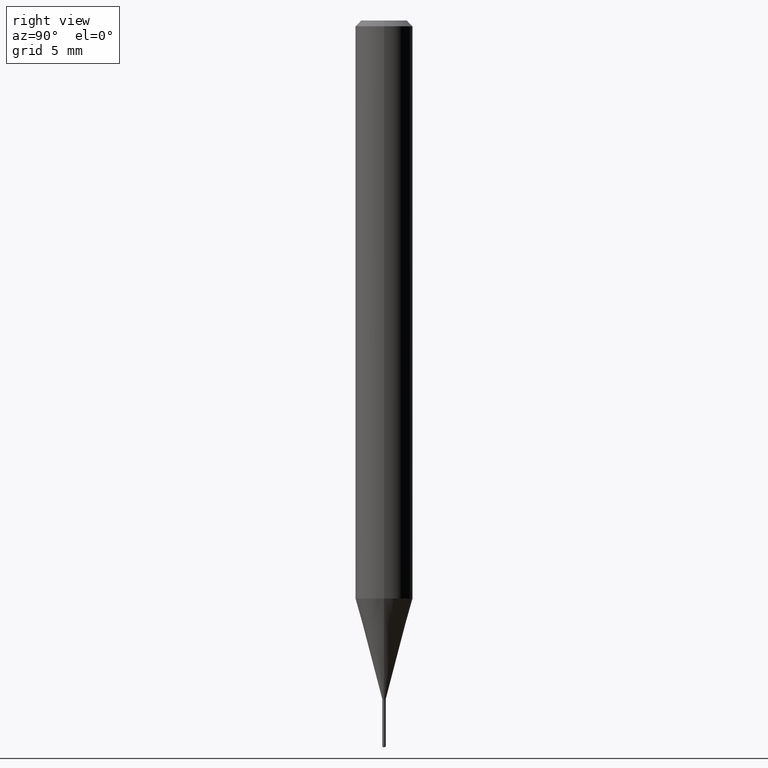
[diagram: clean part render]
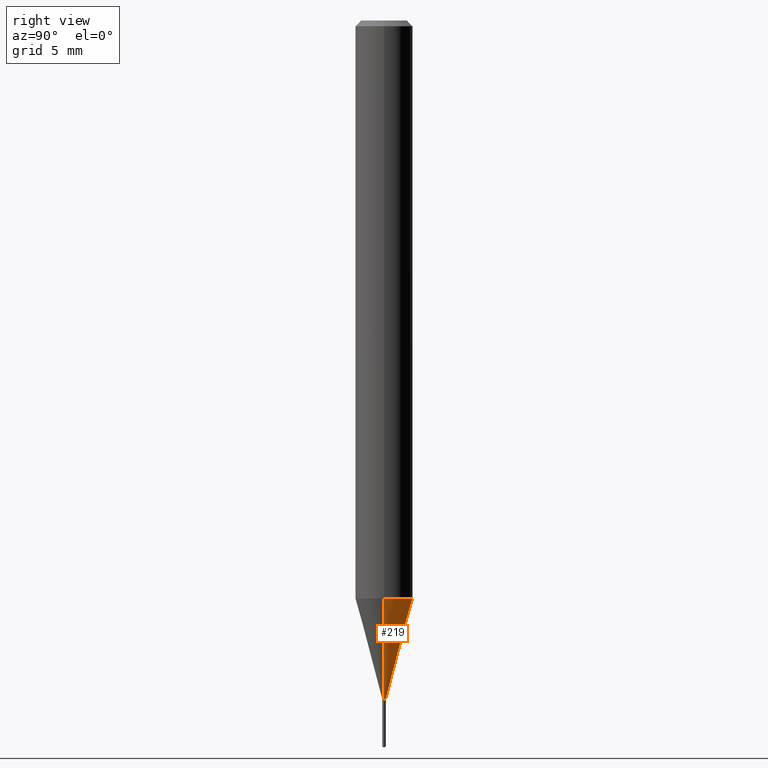
[diagram: same view with one face highlighted and labeled with its STEP entity id]
A machine part, right view. The second image highlights one B-rep face of the part: STEP entity #219.
In plain terms, the highlighted conical surface has half-angle 15 deg.
Its self-contained STEP definition (entity closure, byte-faithful):
#4 = ORIENTED_EDGE ( 'NONE', *, *, #289, .F. ) ;
#33 = EDGE_CURVE ( 'NONE', #400, #395, #375, .T. ) ;
#36 = CARTESIAN_POINT ( 'NONE',  ( 0.05905000000000014404, -4.565360374807322723E-15, -1.189471180179926924 ) ) ;
#56 = VERTEX_POINT ( 'NONE', #369 ) ;
#68 = CARTESIAN_POINT ( 'NONE',  ( -0.003549999999999997602, -4.852026015110506796E-15, -1.396599999999999842 ) ) ;
#69 = DIRECTION ( 'NONE',  ( 1.000000000000000000, -6.982962677686272233E-15, 0.000000000000000000 ) ) ;
#72 = CARTESIAN_POINT ( 'NONE',  ( -0.05905000000000014404, -3.733440943223607521E-15, -1.189471180179926924 ) ) ;
#78 = EDGE_LOOP ( 'NONE', ( #212, #393, #4, #458 ) ) ;
#104 = DIRECTION ( 'NONE',  ( -2.445468806185136597E-29, 3.491481338843145583E-15, 1.000000000000000000 ) ) ;
#134 = AXIS2_PLACEMENT_3D ( 'NONE', #269, #104, #312 ) ;
#140 = FACE_OUTER_BOUND ( 'NONE', #78, .T. ) ;
#143 = DIRECTION ( 'NONE',  ( 0.2588190451025211836, 1.565188264969622559E-15, 0.9659258262890679791 ) ) ;
#159 = VECTOR ( 'NONE', #470, 39.37007874015748854 ) ;
#212 = ORIENTED_EDGE ( 'NONE', *, *, #252, .T. ) ;
#219 = ADVANCED_FACE ( 'NONE', ( #140 ), #482, .T. ) ;
#225 = CIRCLE ( 'NONE', #134, 0.003549999999999997602 ) ;
#247 = LINE ( 'NONE', #305, #447 ) ;
#252 = EDGE_CURVE ( 'NONE', #56, #400, #225, .T. ) ;
#269 = CARTESIAN_POINT ( 'NONE',  ( 3.415341734718161419E-29, -4.876202837828336250E-15, -1.396599999999999842 ) ) ;
#289 = EDGE_CURVE ( 'NONE', #431, #395, #300, .T. ) ;
#300 = CIRCLE ( 'NONE', #420, 0.05905000000000014404 ) ;
#305 = CARTESIAN_POINT ( 'NONE',  ( 0.003549999999999997602, -4.900992355334122390E-15, -1.396599999999999842 ) ) ;
#312 = DIRECTION ( 'NONE',  ( 1.000000000000000000, -6.982962677686296687E-15, 0.000000000000000000 ) ) ;
#330 = AXIS2_PLACEMENT_3D ( 'NONE', #341, #384, #382 ) ;
#341 = CARTESIAN_POINT ( 'NONE',  ( 3.415341734718161419E-29, -4.876202837828336250E-15, -1.396599999999999842 ) ) ;
#359 = EDGE_CURVE ( 'NONE', #56, #431, #247, .T. ) ;
#369 = CARTESIAN_POINT ( 'NONE',  ( 0.003549999999999997602, -4.900992355334122390E-15, -1.396599999999999842 ) ) ;
#375 = LINE ( 'NONE', #407, #159 ) ;
#382 = DIRECTION ( 'NONE',  ( 1.000000000000000000, -6.982962677686296687E-15, 0.000000000000000000 ) ) ;
#384 = DIRECTION ( 'NONE',  ( -2.445468806185136597E-29, 3.491481338843145583E-15, 1.000000000000000000 ) ) ;
#393 = ORIENTED_EDGE ( 'NONE', *, *, #33, .T. ) ;
#395 = VERTEX_POINT ( 'NONE', #72 ) ;
#400 = VERTEX_POINT ( 'NONE', #68 ) ;
#407 = CARTESIAN_POINT ( 'NONE',  ( -0.003549999999999997602, -4.850978570708852316E-15, -1.396599999999999842 ) ) ;
#420 = AXIS2_PLACEMENT_3D ( 'NONE', #483, #422, #69 ) ;
#422 = DIRECTION ( 'NONE',  ( -2.445468806185136597E-29, 3.491481338843145583E-15, 1.000000000000000000 ) ) ;
#431 = VERTEX_POINT ( 'NONE', #36 ) ;
#447 = VECTOR ( 'NONE', #143, 39.37007874015748854 ) ;
#458 = ORIENTED_EDGE ( 'NONE', *, *, #359, .F. ) ;
#470 = DIRECTION ( 'NONE',  ( -0.2588190451025211836, 5.211531920934547886E-15, 0.9659258262890679791 ) ) ;
#482 = CONICAL_SURFACE ( 'NONE', #330, 0.003549999999999997602, 0.2617993877991499074 ) ;
#483 = CARTESIAN_POINT ( 'NONE',  ( 2.908814666986231247E-29, -4.153016428689947803E-15, -1.189471180179926924 ) ) ;